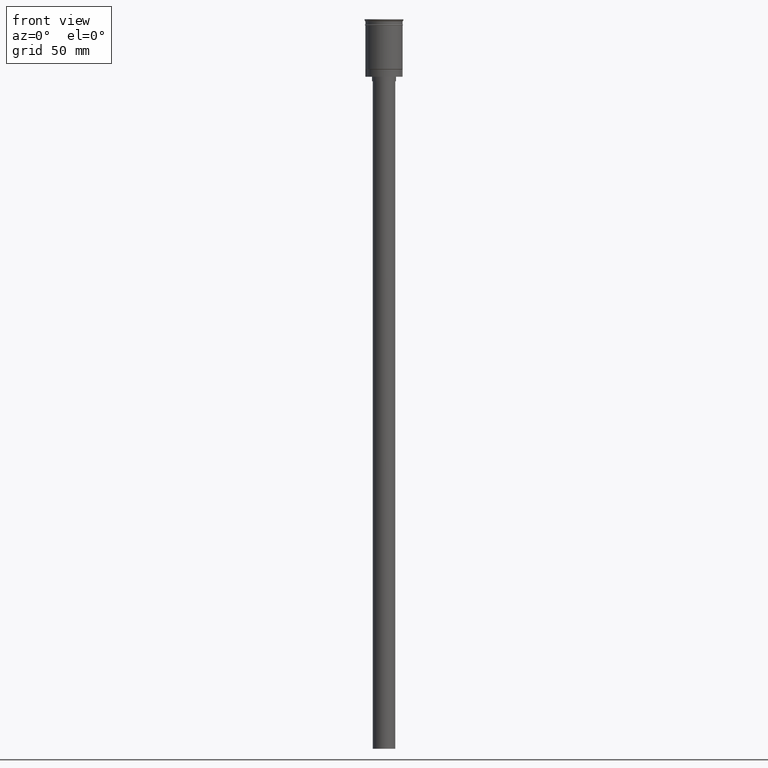
[diagram: clean part render]
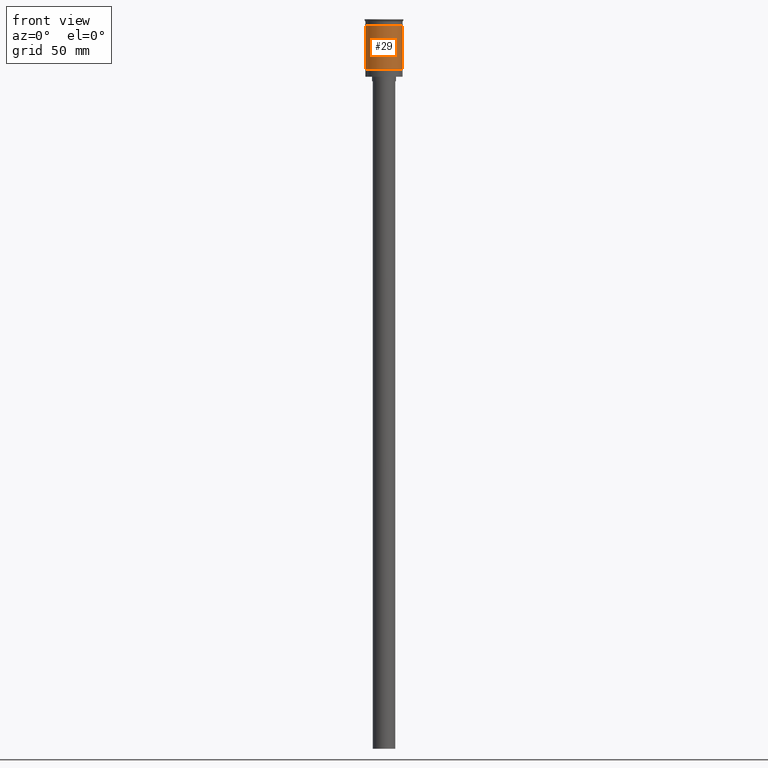
[diagram: same view with one face highlighted and labeled with its STEP entity id]
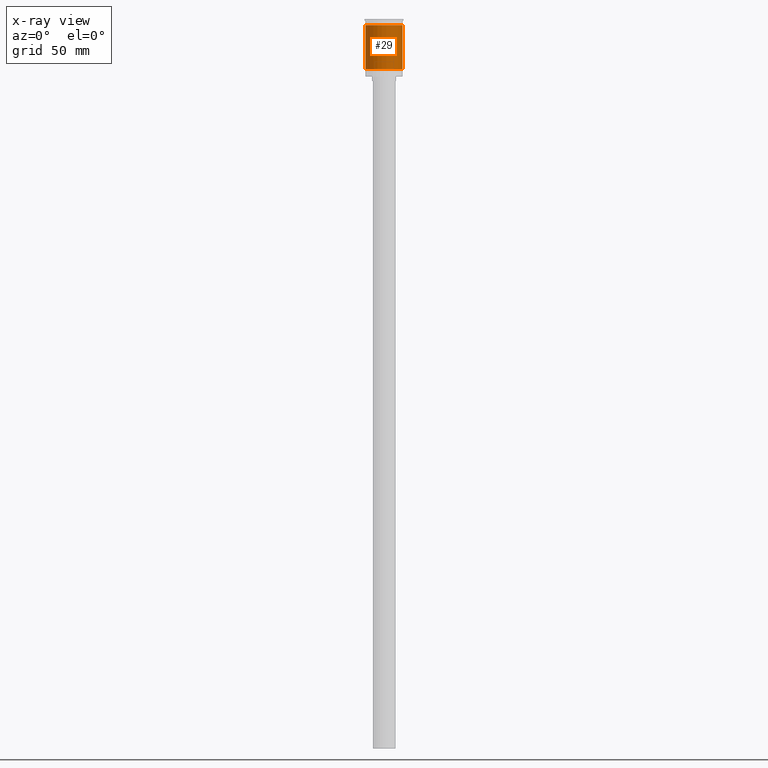
[diagram: x-ray of the same camera — body ghosted, the highlighted face saturated]
A machine part, front view. The second image highlights one B-rep face of the part: STEP entity #29.
The next image is the same camera in x-ray: the body ghosted, the highlighted face saturated — about 0% of this face is hidden behind the body in this view.
In plain terms, the highlighted cylindrical surface (edge-blend (fillet) strip) has radius 12.5 mm, axis along (-0, -0, 1).
Its self-contained STEP definition (entity closure, byte-faithful):
#12 = CIRCLE ( 'NONE', #247, 12.49999999999999822 ) ;
#29 = ADVANCED_FACE ( 'NONE', ( #1216 ), #620, .T. ) ;
#44 = DIRECTION ( 'NONE',  ( -0.000000000000000000, -0.000000000000000000, 1.000000000000000000 ) ) ;
#90 = CARTESIAN_POINT ( 'NONE',  ( -12.49999999999999645, 1.530808498934191127E-15, 0.000000000000000000 ) ) ;
#93 = VERTEX_POINT ( 'NONE', #352 ) ;
#209 = CARTESIAN_POINT ( 'NONE',  ( 12.49999999999999645, 1.530808498934191127E-15, -33.30000000000005400 ) ) ;
#247 = AXIS2_PLACEMENT_3D ( 'NONE', #1147, #44, #537 ) ;
#352 = CARTESIAN_POINT ( 'NONE',  ( -12.49999999999999289, 0.000000000000000000, -33.30000000000005400 ) ) ;
#380 = CARTESIAN_POINT ( 'NONE',  ( -12.50000000000000000, 1.530808498934191521E-15, -3.999999999999996447 ) ) ;
#433 = LINE ( 'NONE', #1047, #802 ) ;
#484 = ORIENTED_EDGE ( 'NONE', *, *, #845, .T. ) ;
#537 = DIRECTION ( 'NONE',  ( 1.000000000000000000, 0.000000000000000000, 0.000000000000000000 ) ) ;
#596 = DIRECTION ( 'NONE',  ( 1.000000000000000000, 0.000000000000000000, 0.000000000000000000 ) ) ;
#620 = CYLINDRICAL_SURFACE ( 'NONE', #956, 12.49999999999999645 ) ;
#696 = LINE ( 'NONE', #90, #1352 ) ;
#708 = DIRECTION ( 'NONE',  ( -0.000000000000000000, -0.000000000000000000, 1.000000000000000000 ) ) ;
#749 = DIRECTION ( 'NONE',  ( -0.000000000000000000, -0.000000000000000000, 1.000000000000000000 ) ) ;
#752 = ORIENTED_EDGE ( 'NONE', *, *, #977, .F. ) ;
#802 = VECTOR ( 'NONE', #930, 1000.000000000000000 ) ;
#845 = EDGE_CURVE ( 'NONE', #945, #1144, #433, .T. ) ;
#924 = EDGE_CURVE ( 'NONE', #1198, #1144, #12, .T. ) ;
#930 = DIRECTION ( 'NONE',  ( -0.000000000000000000, -0.000000000000000000, 1.000000000000000000 ) ) ;
#933 = CARTESIAN_POINT ( 'NONE',  ( 12.49999999999999822, 0.000000000000000000, -3.999999999999996447 ) ) ;
#945 = VERTEX_POINT ( 'NONE', #209 ) ;
#951 = CARTESIAN_POINT ( 'NONE',  ( 0.000000000000000000, 0.000000000000000000, -33.30000000000005400 ) ) ;
#956 = AXIS2_PLACEMENT_3D ( 'NONE', #972, #749, #596 ) ;
#972 = CARTESIAN_POINT ( 'NONE',  ( 0.000000000000000000, 0.000000000000000000, 0.000000000000000000 ) ) ;
#977 = EDGE_CURVE ( 'NONE', #93, #1198, #696, .T. ) ;
#1016 = EDGE_LOOP ( 'NONE', ( #752, #1381, #484, #1254 ) ) ;
#1042 = EDGE_CURVE ( 'NONE', #93, #945, #1244, .T. ) ;
#1047 = CARTESIAN_POINT ( 'NONE',  ( 12.49999999999999645, 0.000000000000000000, 0.000000000000000000 ) ) ;
#1117 = AXIS2_PLACEMENT_3D ( 'NONE', #951, #1326, #1203 ) ;
#1144 = VERTEX_POINT ( 'NONE', #933 ) ;
#1147 = CARTESIAN_POINT ( 'NONE',  ( 0.000000000000000000, 0.000000000000000000, -3.999999999999996447 ) ) ;
#1198 = VERTEX_POINT ( 'NONE', #380 ) ;
#1203 = DIRECTION ( 'NONE',  ( -1.000000000000000000, 0.000000000000000000, 0.000000000000000000 ) ) ;
#1216 = FACE_OUTER_BOUND ( 'NONE', #1016, .T. ) ;
#1244 = CIRCLE ( 'NONE', #1117, 12.49999999999999645 ) ;
#1254 = ORIENTED_EDGE ( 'NONE', *, *, #924, .F. ) ;
#1326 = DIRECTION ( 'NONE',  ( -0.000000000000000000, -0.000000000000000000, 1.000000000000000000 ) ) ;
#1352 = VECTOR ( 'NONE', #708, 1000.000000000000000 ) ;
#1381 = ORIENTED_EDGE ( 'NONE', *, *, #1042, .T. ) ;